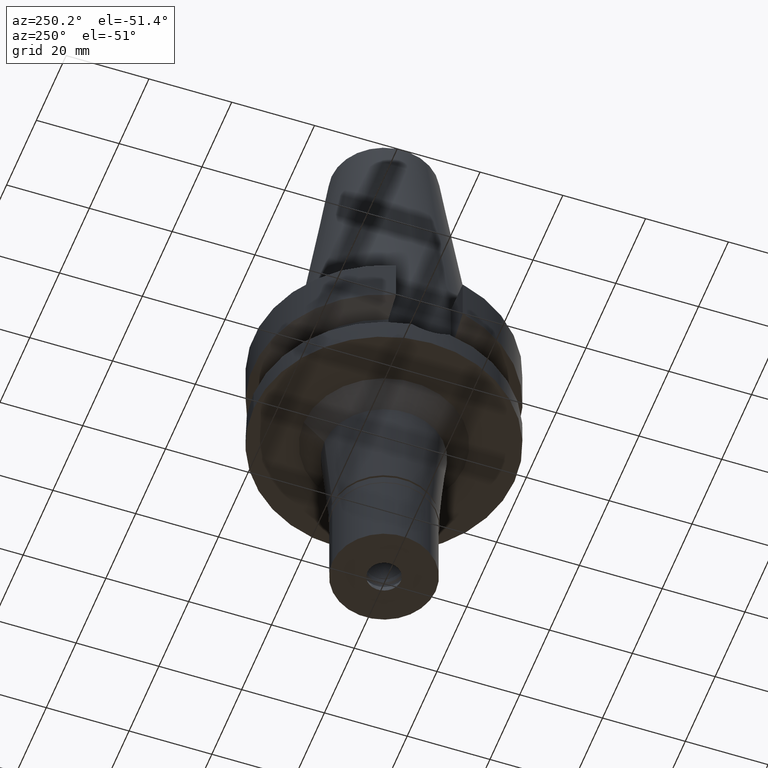
[diagram: clean part render]
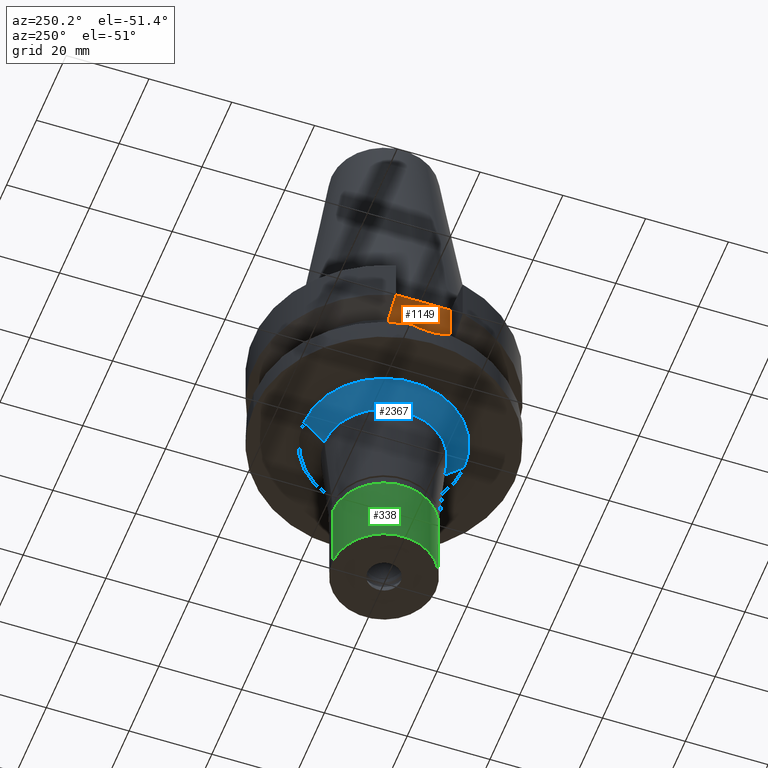
[diagram: same view with three faces highlighted in distinct colors, each labeled with its STEP entity id]
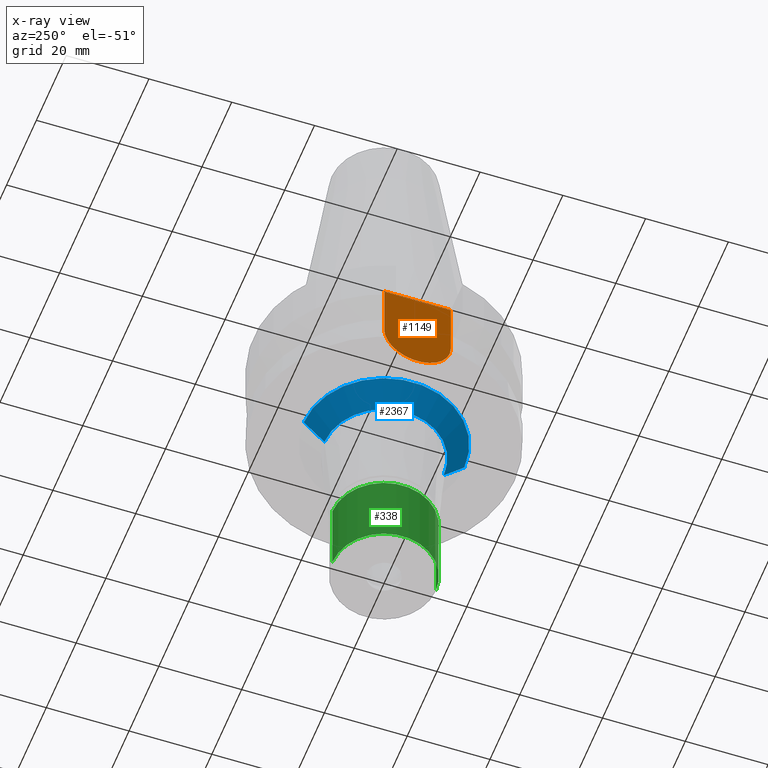
[diagram: x-ray of the same camera — body ghosted, the three highlighted faces saturated]
A machine part, auxiliary view with three faces highlighted in distinct colors.
The next image is the same camera in x-ray (body ghosted, the three faces saturated) — at least one of them is partly hidden behind the body in this view.
Their STEP definitions:

[orange] entity #1149 — the highlighted planar face has unit normal (-1, 0, 0).
#22 = ORIENTED_EDGE ( 'NONE', *, *, #948, .F. ) ;
#31 = DIRECTION ( 'NONE',  ( 1.000000000000000000, 0.0000000000000000000, 0.0000000000000000000 ) ) ;
#102 = CARTESIAN_POINT ( 'NONE',  ( -22.50000000000000000, -8.050000000000000711, -1.000000000000000000 ) ) ;
#211 = ORIENTED_EDGE ( 'NONE', *, *, #1498, .T. ) ;
#252 = CARTESIAN_POINT ( 'NONE',  ( -22.50000000000000000, 8.050000000000000711, -14.94999999999999929 ) ) ;
#531 = CARTESIAN_POINT ( 'NONE',  ( -22.50000000000000000, -8.050000000000000711, -14.94999999999999929 ) ) ;
#542 = CARTESIAN_POINT ( 'NONE',  ( -22.50000000000000000, 1.807578675540999863E-14, -14.94999999999999929 ) ) ;
#651 = EDGE_LOOP ( 'NONE', ( #2823, #2300, #22, #211 ) ) ;
#729 = VECTOR ( 'NONE', #2761, 1000.000000000000000 ) ;
#948 = EDGE_CURVE ( 'NONE', #1780, #1158, #2363, .T. ) ;
#990 = DIRECTION ( 'NONE',  ( 0.0000000000000000000, 0.0000000000000000000, -1.000000000000000000 ) ) ;
#991 = LINE ( 'NONE', #252, #2551 ) ;
#994 = DIRECTION ( 'NONE',  ( 0.0000000000000000000, 0.0000000000000000000, 1.000000000000000000 ) ) ;
#1149 = ADVANCED_FACE ( 'NONE', ( #2680 ), #2887, .T. ) ;
#1158 = VERTEX_POINT ( 'NONE', #531 ) ;
#1191 = CARTESIAN_POINT ( 'NONE',  ( -22.50000000000000000, 8.050000000000000711, -1.000000000000000000 ) ) ;
#1303 = EDGE_CURVE ( 'NONE', #2578, #2843, #991, .T. ) ;
#1403 = CARTESIAN_POINT ( 'NONE',  ( -22.50000000000000000, -8.050000000000000711, -1.000000000000000000 ) ) ;
#1498 = EDGE_CURVE ( 'NONE', #1780, #2843, #2233, .T. ) ;
#1632 = CIRCLE ( 'NONE', #1676, 8.050000000000000711 ) ;
#1672 = EDGE_CURVE ( 'NONE', #1158, #2578, #1632, .T. ) ;
#1676 = AXIS2_PLACEMENT_3D ( 'NONE', #542, #31, #990 ) ;
#1720 = CARTESIAN_POINT ( 'NONE',  ( -22.50000000000000000, -8.050000000000000711, -1.000000000000000000 ) ) ;
#1780 = VERTEX_POINT ( 'NONE', #1720 ) ;
#2032 = CARTESIAN_POINT ( 'NONE',  ( -22.50000000000000000, 8.050000000000000711, -14.94999999999999929 ) ) ;
#2187 = DIRECTION ( 'NONE',  ( -1.000000000000000000, 0.0000000000000000000, 0.0000000000000000000 ) ) ;
#2229 = AXIS2_PLACEMENT_3D ( 'NONE', #2436, #2187, #994 ) ;
#2233 = LINE ( 'NONE', #102, #729 ) ;
#2300 = ORIENTED_EDGE ( 'NONE', *, *, #1672, .F. ) ;
#2363 = LINE ( 'NONE', #1403, #3019 ) ;
#2431 = DIRECTION ( 'NONE',  ( 0.0000000000000000000, 0.0000000000000000000, 1.000000000000000000 ) ) ;
#2436 = CARTESIAN_POINT ( 'NONE',  ( -22.50000000000000000, 2.173748068486999793E-14, 0.0000000000000000000 ) ) ;
#2551 = VECTOR ( 'NONE', #2431, 1000.000000000000000 ) ;
#2578 = VERTEX_POINT ( 'NONE', #2032 ) ;
#2680 = FACE_OUTER_BOUND ( 'NONE', #651, .T. ) ;
#2761 = DIRECTION ( 'NONE',  ( 0.0000000000000000000, 1.000000000000000000, 0.0000000000000000000 ) ) ;
#2823 = ORIENTED_EDGE ( 'NONE', *, *, #1303, .F. ) ;
#2843 = VERTEX_POINT ( 'NONE', #1191 ) ;
#2887 = PLANE ( 'NONE',  #2229 ) ;
#3019 = VECTOR ( 'NONE', #3105, 1000.000000000000000 ) ;
#3105 = DIRECTION ( 'NONE',  ( 0.0000000000000000000, 0.0000000000000000000, -1.000000000000000000 ) ) ;

[blue] entity #2367 — the highlighted conical surface has half-angle 45 deg.
#66 = EDGE_CURVE ( 'NONE', #664, #2153, #2385, .T. ) ;
#190 = ORIENTED_EDGE ( 'NONE', *, *, #1247, .F. ) ;
#212 = DIRECTION ( 'NONE',  ( 0.0000000000000000000, -1.000000000000000000, 0.0000000000000000000 ) ) ;
#260 = CARTESIAN_POINT ( 'NONE',  ( 0.0000000000000000000, 0.0000000000000000000, -32.00000000000000000 ) ) ;
#456 = CARTESIAN_POINT ( 'NONE',  ( 0.0000000000000000000, 0.0000000000000000000, -27.00000000000000000 ) ) ;
#506 = DIRECTION ( 'NONE',  ( 0.0000000000000000000, -1.000000000000000000, 0.0000000000000000000 ) ) ;
#524 = LINE ( 'NONE', #1408, #2127 ) ;
#544 = AXIS2_PLACEMENT_3D ( 'NONE', #737, #956, #1909 ) ;
#654 = CARTESIAN_POINT ( 'NONE',  ( 0.0000000000000000000, 19.39850399851000162, -27.00000000000000000 ) ) ;
#659 = VERTEX_POINT ( 'NONE', #1394 ) ;
#660 = VERTEX_POINT ( 'NONE', #2366 ) ;
#664 = VERTEX_POINT ( 'NONE', #928 ) ;
#737 = CARTESIAN_POINT ( 'NONE',  ( 0.0000000000000000000, 0.0000000000000000000, -29.50000000000000000 ) ) ;
#763 = FACE_OUTER_BOUND ( 'NONE', #1193, .T. ) ;
#916 = ORIENTED_EDGE ( 'NONE', *, *, #1848, .F. ) ;
#928 = CARTESIAN_POINT ( 'NONE',  ( 0.0000000000000000000, -19.39850399851000162, -27.00000000000000000 ) ) ;
#956 = DIRECTION ( 'NONE',  ( 0.0000000000000000000, 0.0000000000000000000, 1.000000000000000000 ) ) ;
#1020 = LINE ( 'NONE', #2779, #1827 ) ;
#1028 = CIRCLE ( 'NONE', #1378, 14.39850399850999985 ) ;
#1193 = EDGE_LOOP ( 'NONE', ( #916, #190, #1666, #2388 ) ) ;
#1200 = DIRECTION ( 'NONE',  ( 0.0000000000000000000, 0.7071067811862969954, -0.7071067811867980391 ) ) ;
#1224 = DIRECTION ( 'NONE',  ( 0.0000000000000000000, 0.0000000000000000000, -1.000000000000000000 ) ) ;
#1247 = EDGE_CURVE ( 'NONE', #664, #660, #524, .T. ) ;
#1349 = EDGE_CURVE ( 'NONE', #2153, #659, #1020, .T. ) ;
#1378 = AXIS2_PLACEMENT_3D ( 'NONE', #260, #1224, #506 ) ;
#1394 = CARTESIAN_POINT ( 'NONE',  ( 0.0000000000000000000, 14.39850399850999985, -32.00000000000000000 ) ) ;
#1408 = CARTESIAN_POINT ( 'NONE',  ( 0.0000000000000000000, -19.39850399851000162, -27.00000000000000000 ) ) ;
#1635 = CONICAL_SURFACE ( 'NONE', #544, 16.89850399851000162, 0.7853981633972997312 ) ;
#1666 = ORIENTED_EDGE ( 'NONE', *, *, #66, .T. ) ;
#1827 = VECTOR ( 'NONE', #3002, 1000.000000000000000 ) ;
#1848 = EDGE_CURVE ( 'NONE', #660, #659, #1028, .T. ) ;
#1909 = DIRECTION ( 'NONE',  ( 0.0000000000000000000, 1.000000000000000000, 0.0000000000000000000 ) ) ;
#2127 = VECTOR ( 'NONE', #1200, 1000.000000000000000 ) ;
#2151 = DIRECTION ( 'NONE',  ( 0.0000000000000000000, 0.0000000000000000000, -1.000000000000000000 ) ) ;
#2153 = VERTEX_POINT ( 'NONE', #654 ) ;
#2366 = CARTESIAN_POINT ( 'NONE',  ( 0.0000000000000000000, -14.39850399850999985, -32.00000000000000000 ) ) ;
#2367 = ADVANCED_FACE ( 'NONE', ( #763 ), #1635, .T. ) ;
#2385 = CIRCLE ( 'NONE', #3114, 19.39850399851000162 ) ;
#2388 = ORIENTED_EDGE ( 'NONE', *, *, #1349, .T. ) ;
#2779 = CARTESIAN_POINT ( 'NONE',  ( 0.0000000000000000000, 19.39850399851000162, -27.00000000000000000 ) ) ;
#3002 = DIRECTION ( 'NONE',  ( 0.0000000000000000000, -0.7071067811862969954, -0.7071067811867980391 ) ) ;
#3114 = AXIS2_PLACEMENT_3D ( 'NONE', #456, #2151, #212 ) ;

[green] entity #338 — the highlighted cylindrical surface (partial cylindrical patch) has radius 12.5 mm, axis along (0, 0, -1).
#33 = CIRCLE ( 'NONE', #1233, 12.50000000000000000 ) ;
#202 = DIRECTION ( 'NONE',  ( 0.0000000000000000000, 0.0000000000000000000, 1.000000000000000000 ) ) ;
#257 = VERTEX_POINT ( 'NONE', #809 ) ;
#265 = DIRECTION ( 'NONE',  ( 0.0000000000000000000, 0.0000000000000000000, -1.000000000000000000 ) ) ;
#338 = ADVANCED_FACE ( 'NONE', ( #2501 ), #776, .T. ) ;
#393 = DIRECTION ( 'NONE',  ( 0.0000000000000000000, 1.000000000000000000, 0.0000000000000000000 ) ) ;
#468 = EDGE_LOOP ( 'NONE', ( #921, #2830, #1797, #3061 ) ) ;
#540 = CARTESIAN_POINT ( 'NONE',  ( 0.0000000000000000000, 12.50000000000000000, -2.000000000000000000 ) ) ;
#577 = VERTEX_POINT ( 'NONE', #707 ) ;
#599 = VERTEX_POINT ( 'NONE', #1689 ) ;
#611 = CARTESIAN_POINT ( 'NONE',  ( 0.0000000000000000000, -12.50000000000000000, -2.000000000000000000 ) ) ;
#707 = CARTESIAN_POINT ( 'NONE',  ( 0.0000000000000000000, -12.50000000000000000, -2.000000000000000000 ) ) ;
#772 = EDGE_CURVE ( 'NONE', #3137, #599, #1699, .T. ) ;
#776 = CYLINDRICAL_SURFACE ( 'NONE', #1366, 12.50000000000000000 ) ;
#787 = DIRECTION ( 'NONE',  ( 0.0000000000000000000, 0.0000000000000000000, -1.000000000000000000 ) ) ;
#809 = CARTESIAN_POINT ( 'NONE',  ( 0.0000000000000000000, -12.50000000000000000, -20.50000000000000000 ) ) ;
#921 = ORIENTED_EDGE ( 'NONE', *, *, #2713, .T. ) ;
#1035 = CIRCLE ( 'NONE', #2822, 12.50000000000000000 ) ;
#1114 = LINE ( 'NONE', #611, #2563 ) ;
#1138 = VECTOR ( 'NONE', #787, 1000.000000000000000 ) ;
#1227 = CARTESIAN_POINT ( 'NONE',  ( 0.0000000000000000000, 0.0000000000000000000, 0.0000000000000000000 ) ) ;
#1233 = AXIS2_PLACEMENT_3D ( 'NONE', #2560, #202, #393 ) ;
#1243 = DIRECTION ( 'NONE',  ( 0.0000000000000000000, 0.0000000000000000000, -1.000000000000000000 ) ) ;
#1366 = AXIS2_PLACEMENT_3D ( 'NONE', #1227, #265, #1708 ) ;
#1551 = CARTESIAN_POINT ( 'NONE',  ( 0.0000000000000000000, 0.0000000000000000000, -2.000000000000000000 ) ) ;
#1689 = CARTESIAN_POINT ( 'NONE',  ( 0.0000000000000000000, 12.50000000000000000, -20.50000000000000000 ) ) ;
#1699 = LINE ( 'NONE', #540, #1138 ) ;
#1708 = DIRECTION ( 'NONE',  ( 0.0000000000000000000, -1.000000000000000000, 0.0000000000000000000 ) ) ;
#1797 = ORIENTED_EDGE ( 'NONE', *, *, #2584, .T. ) ;
#2202 = DIRECTION ( 'NONE',  ( 0.0000000000000000000, -1.000000000000000000, 0.0000000000000000000 ) ) ;
#2314 = DIRECTION ( 'NONE',  ( 0.0000000000000000000, 0.0000000000000000000, -1.000000000000000000 ) ) ;
#2501 = FACE_OUTER_BOUND ( 'NONE', #468, .T. ) ;
#2560 = CARTESIAN_POINT ( 'NONE',  ( 0.0000000000000000000, 0.0000000000000000000, -20.50000000000000000 ) ) ;
#2563 = VECTOR ( 'NONE', #2314, 1000.000000000000000 ) ;
#2584 = EDGE_CURVE ( 'NONE', #577, #3137, #1035, .T. ) ;
#2713 = EDGE_CURVE ( 'NONE', #599, #257, #33, .T. ) ;
#2758 = EDGE_CURVE ( 'NONE', #577, #257, #1114, .T. ) ;
#2822 = AXIS2_PLACEMENT_3D ( 'NONE', #1551, #1243, #2202 ) ;
#2830 = ORIENTED_EDGE ( 'NONE', *, *, #2758, .F. ) ;
#2976 = CARTESIAN_POINT ( 'NONE',  ( 0.0000000000000000000, 12.50000000000000000, -2.000000000000000000 ) ) ;
#3061 = ORIENTED_EDGE ( 'NONE', *, *, #772, .T. ) ;
#3137 = VERTEX_POINT ( 'NONE', #2976 ) ;